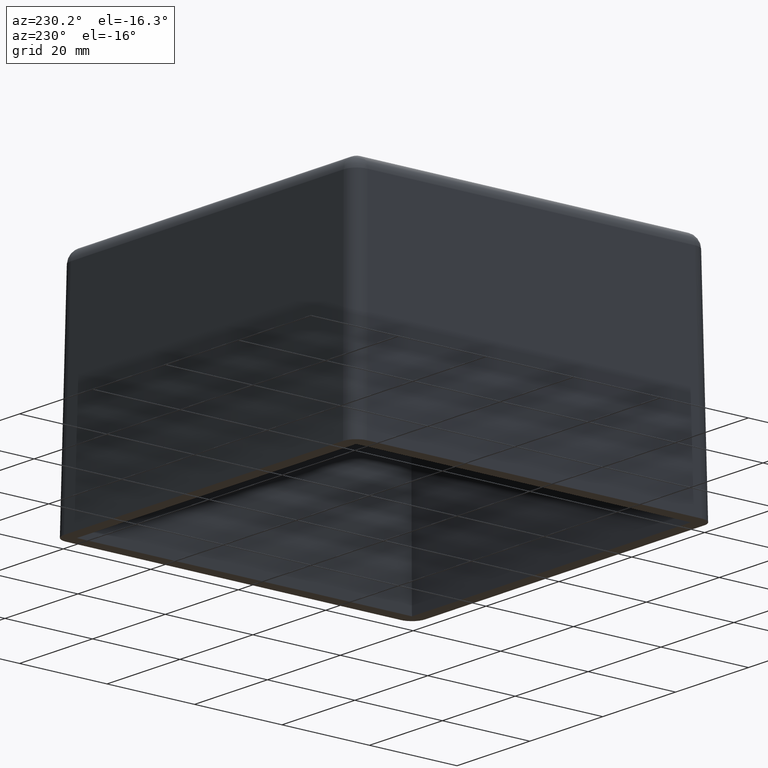
[diagram: clean part render]
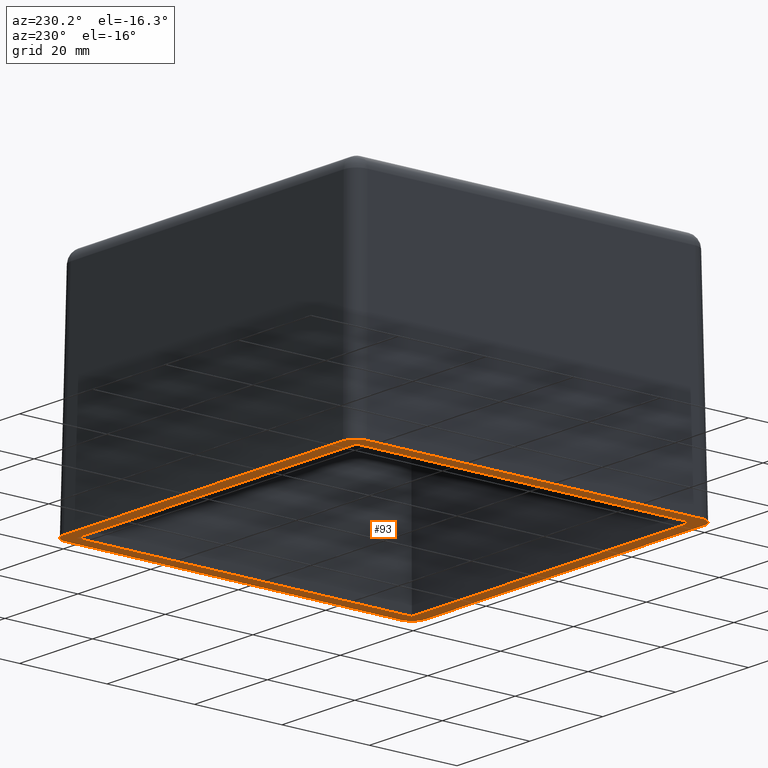
[diagram: same view with one face highlighted and labeled with its STEP entity id]
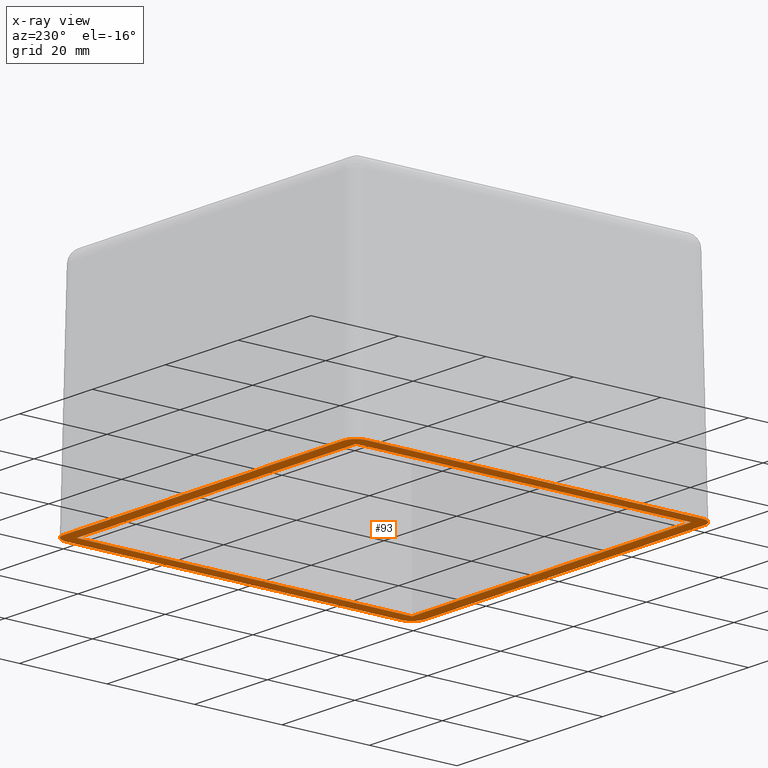
[diagram: x-ray of the same camera — body ghosted, the highlighted face saturated]
A machine part, auxiliary view. The second image highlights one B-rep face of the part: STEP entity #93.
The next image is the same camera in x-ray: the body ghosted, the highlighted face saturated — about 0% of this face is hidden behind the body in this view.
In plain terms, the highlighted planar face has unit normal (0, 0, 1).
Its self-contained STEP definition (entity closure, byte-faithful):
#93 = ADVANCED_FACE( '', ( #205, #206 ), #207, .F. );
#205 = FACE_BOUND( '', #388, .T. );
#206 = FACE_OUTER_BOUND( '', #389, .T. );
#207 = PLANE( '', #390 );
#388 = EDGE_LOOP( '', ( #717, #718, #719, #720 ) );
#389 = EDGE_LOOP( '', ( #721, #722, #723, #724, #725, #726, #727, #728 ) );
#390 = AXIS2_PLACEMENT_3D( '', #729, #730, #731 );
#717 = ORIENTED_EDGE( '', *, *, #1317, .T. );
#718 = ORIENTED_EDGE( '', *, *, #1318, .T. );
#719 = ORIENTED_EDGE( '', *, *, #1319, .T. );
#720 = ORIENTED_EDGE( '', *, *, #1320, .T. );
#721 = ORIENTED_EDGE( '', *, *, #1280, .F. );
#722 = ORIENTED_EDGE( '', *, *, #1302, .T. );
#723 = ORIENTED_EDGE( '', *, *, #1305, .F. );
#724 = ORIENTED_EDGE( '', *, *, #1314, .T. );
#725 = ORIENTED_EDGE( '', *, *, #1316, .F. );
#726 = ORIENTED_EDGE( '', *, *, #1321, .T. );
#727 = ORIENTED_EDGE( '', *, *, #1322, .F. );
#728 = ORIENTED_EDGE( '', *, *, #1323, .T. );
#729 = CARTESIAN_POINT( '', ( -41.3000000000000, -41.3000000000000, 0.000000000000000 ) );
#730 = DIRECTION( '', ( 0.000000000000000, 0.000000000000000, 1.00000000000000 ) );
#731 = DIRECTION( '', ( 0.000000000000000, -1.00000000000000, 0.000000000000000 ) );
#1280 = EDGE_CURVE( '', #1542, #1537, #1544, .F. );
#1302 = EDGE_CURVE( '', #1542, #1577, #1579, .F. );
#1305 = EDGE_CURVE( '', #1582, #1577, #1584, .F. );
#1314 = EDGE_CURVE( '', #1582, #1594, #1596, .F. );
#1316 = EDGE_CURVE( '', #1597, #1594, #1599, .F. );
#1317 = EDGE_CURVE( '', #1600, #1601, #1602, .F. );
#1318 = EDGE_CURVE( '', #1601, #1603, #1604, .F. );
#1319 = EDGE_CURVE( '', #1603, #1605, #1606, .F. );
#1320 = EDGE_CURVE( '', #1605, #1600, #1607, .F. );
#1321 = EDGE_CURVE( '', #1597, #1608, #1609, .F. );
#1322 = EDGE_CURVE( '', #1610, #1608, #1611, .F. );
#1323 = EDGE_CURVE( '', #1610, #1537, #1612, .F. );
#1537 = VERTEX_POINT( '', #1974 );
#1542 = VERTEX_POINT( '', #1981 );
#1544 = LINE( '', #1984, #1985 );
#1577 = VERTEX_POINT( '', #2061 );
#1579 = ELLIPSE( '', #2064, 3.00091389867315, 3.00000000000000 );
#1582 = VERTEX_POINT( '', #2068 );
#1584 = LINE( '', #2071, #2072 );
#1594 = VERTEX_POINT( '', #2083 );
#1596 = ELLIPSE( '', #2086, 3.00091389867315, 3.00000000000000 );
#1597 = VERTEX_POINT( '', #2087 );
#1599 = LINE( '', #2090, #2091 );
#1600 = VERTEX_POINT( '', #2092 );
#1601 = VERTEX_POINT( '', #2093 );
#1602 = LINE( '', #2094, #2095 );
#1603 = VERTEX_POINT( '', #2096 );
#1604 = LINE( '', #2097, #2098 );
#1605 = VERTEX_POINT( '', #2099 );
#1606 = LINE( '', #2100, #2101 );
#1607 = LINE( '', #2102, #2103 );
#1608 = VERTEX_POINT( '', #2104 );
#1609 = ELLIPSE( '', #2105, 3.00091389867315, 3.00000000000000 );
#1610 = VERTEX_POINT( '', #2106 );
#1611 = LINE( '', #2107, #2108 );
#1612 = ELLIPSE( '', #2109, 3.00091389867315, 3.00000000000000 );
#1974 = CARTESIAN_POINT( '', ( -41.3000000000000, -38.3004569145308, 0.000000000000000 ) );
#1981 = CARTESIAN_POINT( '', ( -41.3000000000000, 38.3004569145308, 0.000000000000000 ) );
#1984 = CARTESIAN_POINT( '', ( -41.3000000000000, -41.3000000000000, 0.000000000000000 ) );
#1985 = VECTOR( '', #2437, 1000.00000000000 );
#2061 = CARTESIAN_POINT( '', ( -38.3004569145308, 41.3000000000000, 0.000000000000000 ) );
#2064 = AXIS2_PLACEMENT_3D( '', #2451, #2452, #2453 );
#2068 = CARTESIAN_POINT( '', ( 38.3004569145308, 41.3000000000000, 0.000000000000000 ) );
#2071 = CARTESIAN_POINT( '', ( -41.3000000000000, 41.3000000000000, 0.000000000000000 ) );
#2072 = VECTOR( '', #2456, 1000.00000000000 );
#2083 = CARTESIAN_POINT( '', ( 41.3000000000000, 38.3004569145308, 0.000000000000000 ) );
#2086 = AXIS2_PLACEMENT_3D( '', #2477, #2478, #2479 );
#2087 = CARTESIAN_POINT( '', ( 41.3000000000000, -38.3004569145308, 0.000000000000000 ) );
#2090 = CARTESIAN_POINT( '', ( 41.3000000000000, -41.3000000000000, 0.000000000000000 ) );
#2091 = VECTOR( '', #2481, 1000.00000000000 );
#2092 = CARTESIAN_POINT( '', ( 38.3000000000000, 38.3000000000000, 0.000000000000000 ) );
#2093 = CARTESIAN_POINT( '', ( -38.3000000000000, 38.3000000000000, 0.000000000000000 ) );
#2094 = CARTESIAN_POINT( '', ( -38.3000000000000, 38.3000000000000, 0.000000000000000 ) );
#2095 = VECTOR( '', #2482, 1000.00000000000 );
#2096 = CARTESIAN_POINT( '', ( -38.3000000000000, -38.3000000000000, 0.000000000000000 ) );
#2097 = CARTESIAN_POINT( '', ( -38.3000000000000, -38.3000000000000, 0.000000000000000 ) );
#2098 = VECTOR( '', #2483, 1000.00000000000 );
#2099 = CARTESIAN_POINT( '', ( 38.3000000000000, -38.3000000000000, 0.000000000000000 ) );
#2100 = CARTESIAN_POINT( '', ( -38.3000000000000, -38.3000000000000, 0.000000000000000 ) );
#2101 = VECTOR( '', #2484, 1000.00000000000 );
#2102 = CARTESIAN_POINT( '', ( 38.3000000000000, -38.3000000000000, 0.000000000000000 ) );
#2103 = VECTOR( '', #2485, 1000.00000000000 );
#2104 = CARTESIAN_POINT( '', ( 38.3004569145308, -41.3000000000000, 0.000000000000000 ) );
#2105 = AXIS2_PLACEMENT_3D( '', #2486, #2487, #2488 );
#2106 = CARTESIAN_POINT( '', ( -38.3004569145308, -41.3000000000000, 0.000000000000000 ) );
#2107 = CARTESIAN_POINT( '', ( -41.3000000000000, -41.3000000000000, 0.000000000000000 ) );
#2108 = VECTOR( '', #2489, 1000.00000000000 );
#2109 = AXIS2_PLACEMENT_3D( '', #2490, #2491, #2492 );
#2437 = DIRECTION( '', ( 0.000000000000000, 1.00000000000000, 0.000000000000000 ) );
#2451 = CARTESIAN_POINT( '', ( -38.2995430158683, 38.2995430158683, 0.000000000000000 ) );
#2452 = DIRECTION( '', ( 0.000000000000000, 0.000000000000000, 1.00000000000000 ) );
#2453 = DIRECTION( '', ( -0.707106781186548, 0.707106781186548, 0.000000000000000 ) );
#2456 = DIRECTION( '', ( 1.00000000000000, 0.000000000000000, 0.000000000000000 ) );
#2477 = CARTESIAN_POINT( '', ( 38.2995430158683, 38.2995430158683, 0.000000000000000 ) );
#2478 = DIRECTION( '', ( 0.000000000000000, 0.000000000000000, 1.00000000000000 ) );
#2479 = DIRECTION( '', ( 0.707106781186548, 0.707106781186548, 0.000000000000000 ) );
#2481 = DIRECTION( '', ( 0.000000000000000, -1.00000000000000, 0.000000000000000 ) );
#2482 = DIRECTION( '', ( 1.00000000000000, 0.000000000000000, 0.000000000000000 ) );
#2483 = DIRECTION( '', ( 0.000000000000000, 1.00000000000000, 0.000000000000000 ) );
#2484 = DIRECTION( '', ( -1.00000000000000, 0.000000000000000, 0.000000000000000 ) );
#2485 = DIRECTION( '', ( 0.000000000000000, -1.00000000000000, 0.000000000000000 ) );
#2486 = CARTESIAN_POINT( '', ( 38.2995430158683, -38.2995430158683, 0.000000000000000 ) );
#2487 = DIRECTION( '', ( 0.000000000000000, 0.000000000000000, 1.00000000000000 ) );
#2488 = DIRECTION( '', ( 0.707106781186548, -0.707106781186548, 0.000000000000000 ) );
#2489 = DIRECTION( '', ( -1.00000000000000, 0.000000000000000, 0.000000000000000 ) );
#2490 = CARTESIAN_POINT( '', ( -38.2995430158683, -38.2995430158683, 0.000000000000000 ) );
#2491 = DIRECTION( '', ( 0.000000000000000, 0.000000000000000, 1.00000000000000 ) );
#2492 = DIRECTION( '', ( -0.707106781186548, -0.707106781186548, 0.000000000000000 ) );